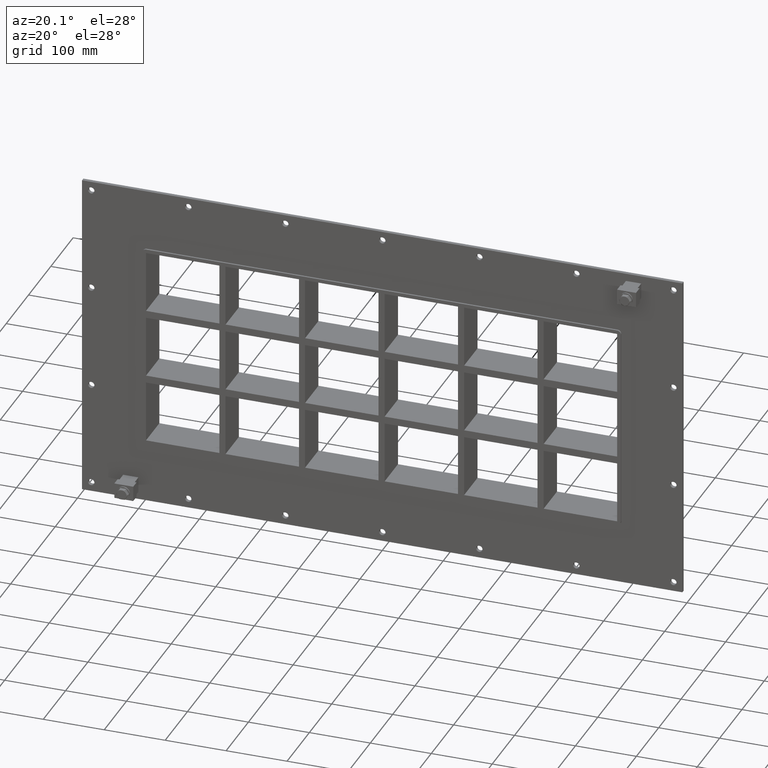
[diagram: clean part render]
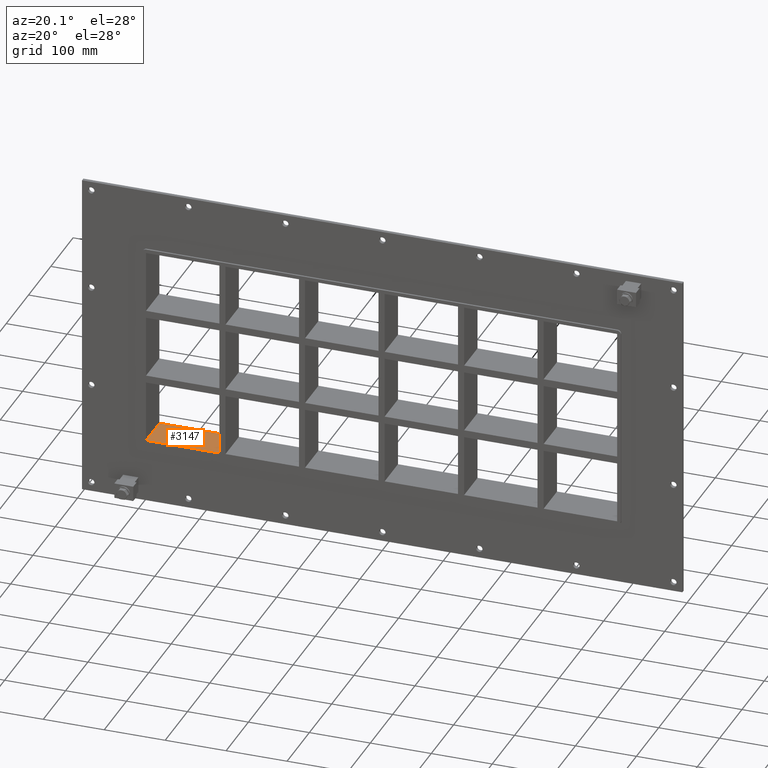
[diagram: same view with one face highlighted and labeled with its STEP entity id]
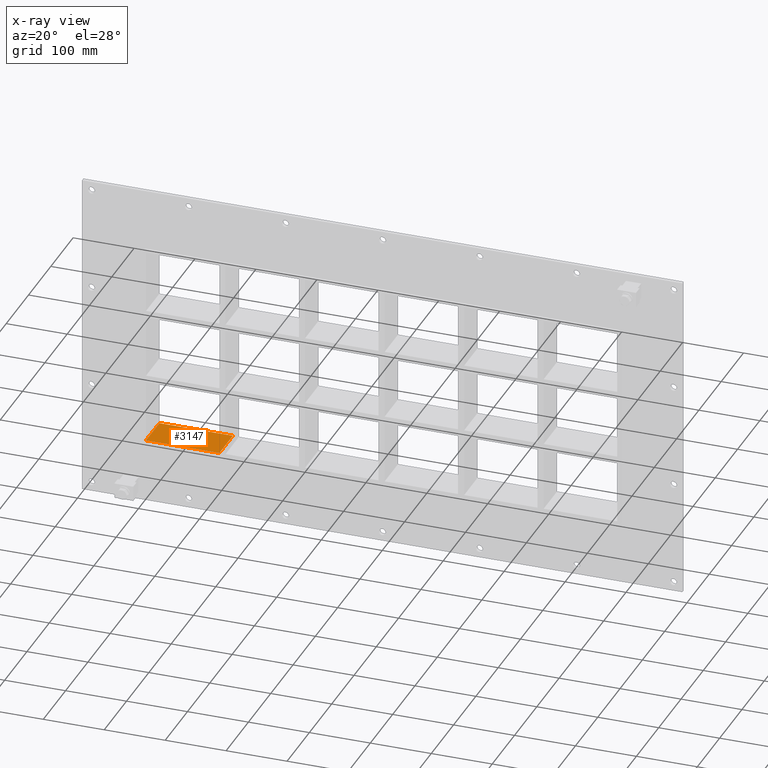
[diagram: x-ray of the same camera — body ghosted, the highlighted face saturated]
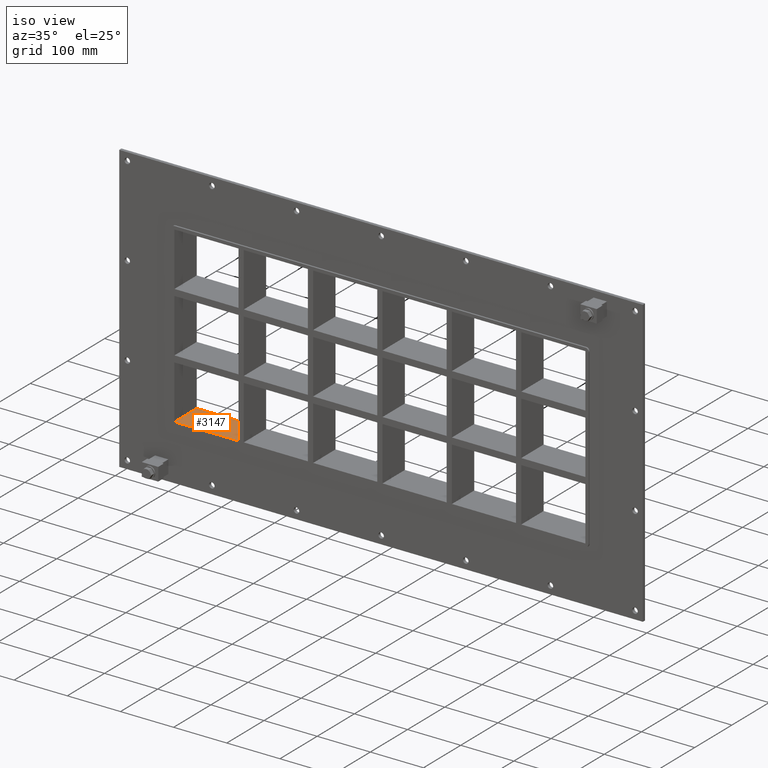
[diagram: same view with one face highlighted and labeled with its STEP entity id]
A machine part, auxiliary view. The second image highlights one B-rep face of the part: STEP entity #3147.
The next image is the same camera in x-ray: the body ghosted, the highlighted face saturated — about 0% of this face is hidden behind the body in this view.
A second angle (iso view) of the same face is appended — the face is thin or edge-on in the first view.
In plain terms, the highlighted planar face has unit normal (0, 0, -1).
Its self-contained STEP definition (entity closure, byte-faithful):
#1754=CARTESIAN_POINT('',(-386.5,57.0,-163.50000000000009));
#1755=VERTEX_POINT('',#1754);
#1762=CARTESIAN_POINT('',(-265.99999999999886,57.0,-163.50000000000009));
#1763=VERTEX_POINT('',#1762);
#1764=CARTESIAN_POINT('',(-386.50000000000006,57.0,-163.50000000000009));
#1765=DIRECTION('',(1.0,0.0,0.0));
#1766=VECTOR('',#1765,120.50000000000114);
#1767=LINE('',#1764,#1766);
#1768=EDGE_CURVE('',#1755,#1763,#1767,.T.);
#2807=CARTESIAN_POINT('',(-265.99999999999886,-3.0,-163.50000000000009));
#2808=VERTEX_POINT('',#2807);
#2815=CARTESIAN_POINT('',(-386.5,-3.0,-163.50000000000009));
#2816=VERTEX_POINT('',#2815);
#2817=CARTESIAN_POINT('',(-265.99999999999892,-3.0,-163.50000000000009));
#2818=DIRECTION('',(-1.0,0.0,0.0));
#2819=VECTOR('',#2818,120.50000000000114);
#2820=LINE('',#2817,#2819);
#2821=EDGE_CURVE('',#2808,#2816,#2820,.T.);
#3109=CARTESIAN_POINT('',(-265.99999999999886,-3.0,-163.50000000000009));
#3110=DIRECTION('',(0.0,1.0,0.0));
#3111=VECTOR('',#3110,60.000000000000007);
#3112=LINE('',#3109,#3111);
#3113=EDGE_CURVE('',#2808,#1763,#3112,.T.);
#3131=CARTESIAN_POINT('',(386.50000000000011,0.0,-163.50000000000009));
#3132=DIRECTION('',(0.0,0.0,-1.0));
#3133=DIRECTION('',(-1.0,0.0,0.0));
#3134=AXIS2_PLACEMENT_3D('',#3131,#3132,#3133);
#3135=PLANE('',#3134);
#3136=ORIENTED_EDGE('',*,*,#3113,.T.);
#3137=ORIENTED_EDGE('',*,*,#1768,.F.);
#3138=CARTESIAN_POINT('',(-386.50000000000006,-3.0,-163.50000000000009));
#3139=DIRECTION('',(0.0,1.0,0.0));
#3140=VECTOR('',#3139,60.0);
#3141=LINE('',#3138,#3140);
#3142=EDGE_CURVE('',#2816,#1755,#3141,.T.);
#3143=ORIENTED_EDGE('',*,*,#3142,.F.);
#3144=ORIENTED_EDGE('',*,*,#2821,.F.);
#3145=EDGE_LOOP('',(#3136,#3137,#3143,#3144));
#3146=FACE_OUTER_BOUND('',#3145,.T.);
#3147=ADVANCED_FACE('',(#3146),#3135,.F.);